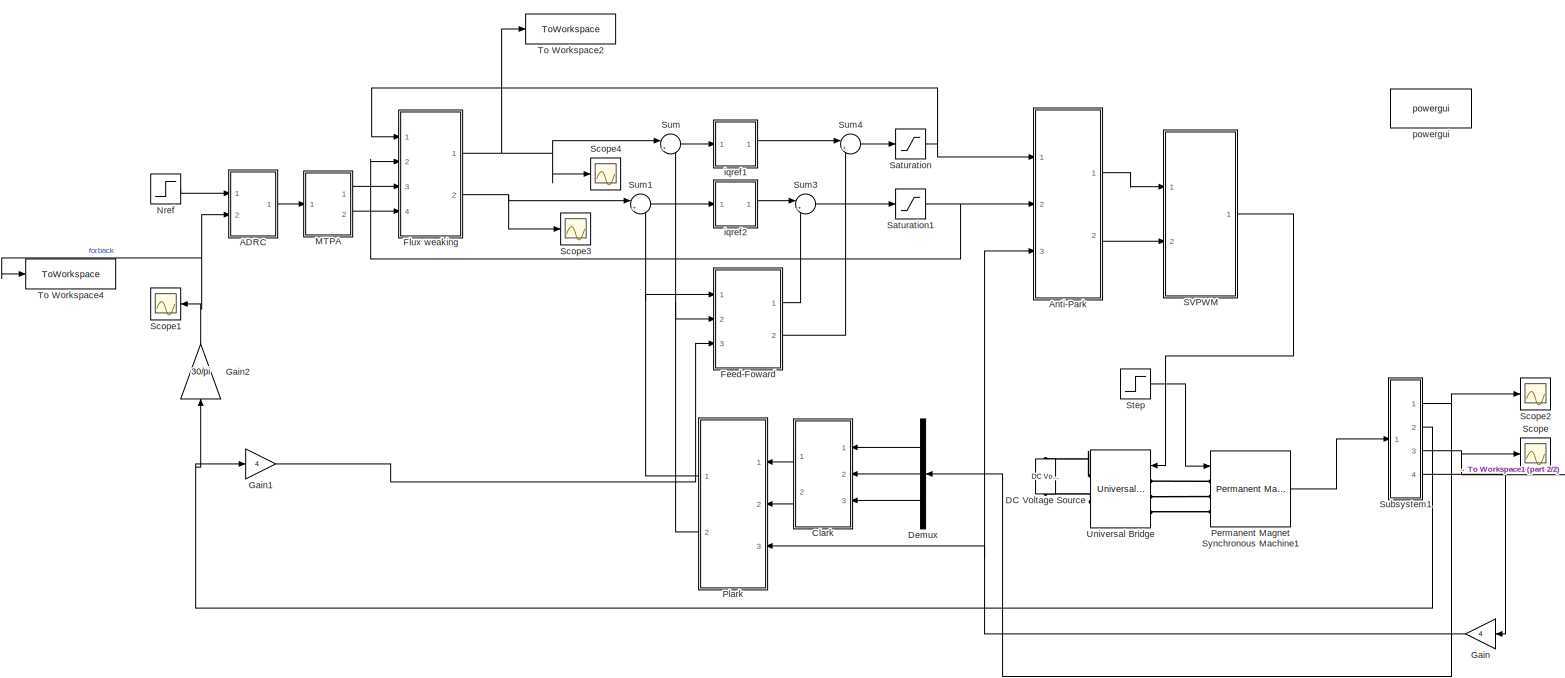
[diagram: root canvas - part 1/2, most of the canvas]
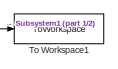
[diagram: root canvas - part 2/2, bottom right region]
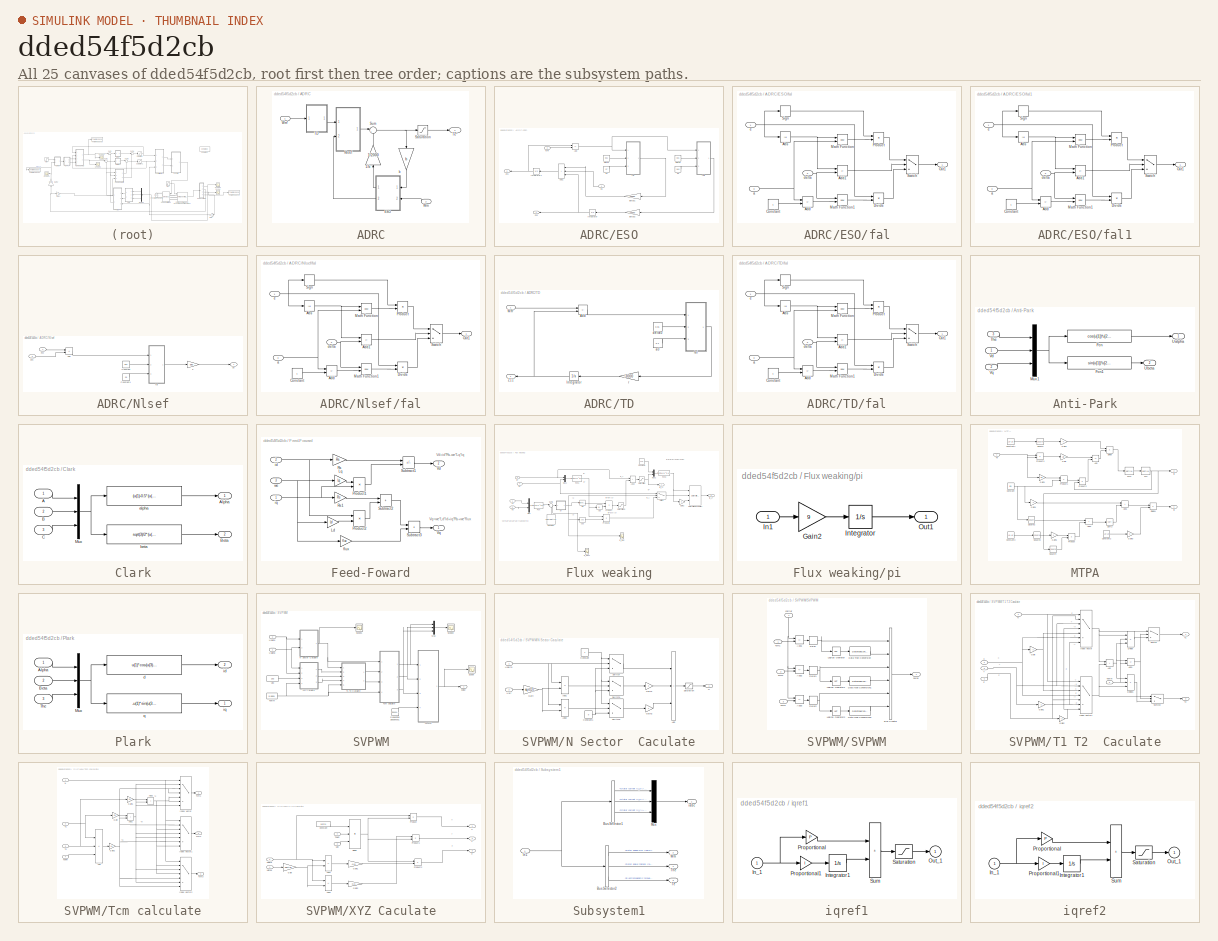
[diagram: thumbnail index - all 25 canvases of the model, root first then tree order]
MODEL slx_dded54f5d2cb
KIND model
CONFIG AbsTol = auto
CONFIG EnableMultiTasking = off
CONFIG FixedStep = auto
CONFIG InitFcn = Ld=0.2e-3;\nLq=0.47e-3;\nflux=0.062;\nRs=0.025;\nb=1600;\n
CONFIG MaxStep = auto
CONFIG MinStep = auto
CONFIG RelTol = auto
CONFIG SampleTimeConstraint = Unconstrained
CONFIG SolverName = ode3
CONFIG StartTime = 0.0
CONFIG StopTime = 0.6
BLOCK [SubSystem] ADRC
  Ports = [2, 1]
  RequestExecContextInheritance = off
BLOCK [Gain] ADRC/1//b
  Gain = 1/2000
  NameLocation = right
BLOCK [SubSystem] ADRC/ESO
  NameLocation = top
  Ports = [2, 2]
  RequestExecContextInheritance = off
BLOCK [Sum] ADRC/ESO/Add
  IconShape = rectangular
  Inputs = +-
  Ports = [2, 1]
BLOCK [Sum] ADRC/ESO/Add1
  IconShape = rectangular
  Inputs = +++
  NameLocation = top
  Ports = [3, 1]
BLOCK [Gain] ADRC/ESO/Beta01
  Gain = -15000
  NameLocation = top
BLOCK [Gain] ADRC/ESO/Beta02
  Gain = -10000
  NameLocation = top
BLOCK [Integrator] ADRC/ESO/Integrator
  NameLocation = top
  Ports = [1, 1]
BLOCK [Integrator] ADRC/ESO/Integrator1
  NameLocation = top
  Ports = [1, 1]
BLOCK [Inport] ADRC/ESO/Wm
  Port = 2
BLOCK [Outport] ADRC/ESO/Z21
  NameLocation = top
  Port = 2
BLOCK [Outport] ADRC/ESO/Z22
  NameLocation = top
BLOCK [Constant] ADRC/ESO/a1
  Value = 0.7
BLOCK [Constant] ADRC/ESO/a2
  Value = 0.83
BLOCK [Inport] ADRC/ESO/bu
  NameLocation = top
BLOCK [Constant] ADRC/ESO/delta1
  Value = 0.01
BLOCK [Constant] ADRC/ESO/delta2
  Value = 0.01
BLOCK [SubSystem] ADRC/ESO/fal
  Ports = [3, 1]
  RequestExecContextInheritance = off
BLOCK [Abs] ADRC/ESO/fal/Abs
  NameLocation = top
  SaturateOnIntegerOverflow = off
BLOCK [Sum] ADRC/ESO/fal/Add
  IconShape = rectangular
  Inputs = -+
  Ports = [2, 1]
BLOCK [Sum] ADRC/ESO/fal/Add1
  IconShape = rectangular
  Inputs = +-
  Ports = [2, 1]
BLOCK [Constant] ADRC/ESO/fal/Constant
BLOCK [Product] ADRC/ESO/fal/Divide
  Inputs = */
  Ports = [2, 1]
BLOCK [Math] ADRC/ESO/fal/Math Function
  Operator = pow
  Ports = [2, 1]
  SignedPower = on
BLOCK [Math] ADRC/ESO/fal/Math Function1
  Operator = pow
  Ports = [2, 1]
  SignedPower = on
BLOCK [Outport] ADRC/ESO/fal/Out1
BLOCK [Product] ADRC/ESO/fal/Product
  Ports = [2, 1]
  RndMeth = Zero
BLOCK [Signum] ADRC/ESO/fal/Sign
BLOCK [Switch] ADRC/ESO/fal/Switch
  InputSameDT = off
  SaturateOnIntegerOverflow = off
BLOCK [Inport] ADRC/ESO/fal/a
  Port = 3
BLOCK [Inport] ADRC/ESO/fal/delta
  Port = 2
BLOCK [Inport] ADRC/ESO/fal/e
BLOCK [SubSystem] ADRC/ESO/fal1
  Ports = [3, 1]
  RequestExecContextInheritance = off
BLOCK [Abs] ADRC/ESO/fal1/Abs
  NameLocation = top
  SaturateOnIntegerOverflow = off
BLOCK [Sum] ADRC/ESO/fal1/Add
  IconShape = rectangular
  Inputs = -+
  Ports = [2, 1]
BLOCK [Sum] ADRC/ESO/fal1/Add1
  IconShape = rectangular
  Inputs = +-
  Ports = [2, 1]
BLOCK [Constant] ADRC/ESO/fal1/Constant
BLOCK [Product] ADRC/ESO/fal1/Divide
  Inputs = */
  Ports = [2, 1]
BLOCK [Math] ADRC/ESO/fal1/Math Function
  Operator = pow
  Ports = [2, 1]
  SignedPower = on
BLOCK [Math] ADRC/ESO/fal1/Math Function1
  Operator = pow
  Ports = [2, 1]
  SignedPower = on
BLOCK [Outport] ADRC/ESO/fal1/Out1
BLOCK [Product] ADRC/ESO/fal1/Product
  Ports = [2, 1]
  RndMeth = Zero
BLOCK [Signum] ADRC/ESO/fal1/Sign
BLOCK [Switch] ADRC/ESO/fal1/Switch
  InputSameDT = off
  SaturateOnIntegerOverflow = off
BLOCK [Inport] ADRC/ESO/fal1/a
  Port = 3
BLOCK [Inport] ADRC/ESO/fal1/delta
  Port = 2
BLOCK [Inport] ADRC/ESO/fal1/e
BLOCK [SubSystem] ADRC/Nlsef
  Ports = [2, 1]
  RequestExecContextInheritance = off
BLOCK [Sum] ADRC/Nlsef/Add
  IconShape = rectangular
  Inputs = +-
  Ports = [2, 1]
BLOCK [Constant] ADRC/Nlsef/Constant
  Value = 0.01
BLOCK [Constant] ADRC/Nlsef/Constant1
  Value = 0.9
BLOCK [Inport] ADRC/Nlsef/Z11
BLOCK [Inport] ADRC/Nlsef/Z21
  Port = 2
BLOCK [SubSystem] ADRC/Nlsef/fal
  Ports = [3, 1]
  RequestExecContextInheritance = off
BLOCK [Abs] ADRC/Nlsef/fal/Abs
  NameLocation = top
  SaturateOnIntegerOverflow = off
BLOCK [Sum] ADRC/Nlsef/fal/Add
  IconShape = rectangular
  Inputs = -+
  Ports = [2, 1]
BLOCK [Sum] ADRC/Nlsef/fal/Add1
  IconShape = rectangular
  Inputs = +-
  Ports = [2, 1]
BLOCK [Constant] ADRC/Nlsef/fal/Constant
BLOCK [Product] ADRC/Nlsef/fal/Divide
  Inputs = */
  Ports = [2, 1]
BLOCK [Math] ADRC/Nlsef/fal/Math Function
  Operator = pow
  Ports = [2, 1]
  SignedPower = on
BLOCK [Math] ADRC/Nlsef/fal/Math Function1
  Operator = pow
  Ports = [2, 1]
  SignedPower = on
BLOCK [Outport] ADRC/Nlsef/fal/Out1
BLOCK [Product] ADRC/Nlsef/fal/Product
  Ports = [2, 1]
  RndMeth = Zero
BLOCK [Signum] ADRC/Nlsef/fal/Sign
BLOCK [Switch] ADRC/Nlsef/fal/Switch
  InputSameDT = off
  SaturateOnIntegerOverflow = off
BLOCK [Inport] ADRC/Nlsef/fal/a
  Port = 3
BLOCK [Inport] ADRC/Nlsef/fal/delta
  Port = 2
BLOCK [Inport] ADRC/Nlsef/fal/e
BLOCK [Gain] ADRC/Nlsef/k
  Gain = 980
BLOCK [Outport] ADRC/Nlsef/u0
BLOCK [Saturate] ADRC/Saturation
  LowerLimit = -72
  UpperLimit = 72
BLOCK [Sum] ADRC/Sum
  Inputs = |+-
  Ports = [2, 1]
BLOCK [SubSystem] ADRC/TD
  Ports = [1, 1]
  RequestExecContextInheritance = off
BLOCK [Sum] ADRC/TD/Add
  IconShape = rectangular
  Inputs = -+
  Ports = [2, 1]
BLOCK [Integrator] ADRC/TD/Integrator
  NameLocation = top
  Ports = [1, 1]
BLOCK [Inport] ADRC/TD/Wm*
BLOCK [Outport] ADRC/TD/Z11
  NameLocation = top
BLOCK [Constant] ADRC/TD/a0
  Value = 0.4
BLOCK [Constant] ADRC/TD/delta0
  Value = 0.01
BLOCK [SubSystem] ADRC/TD/fal
  Ports = [3, 1]
  RequestExecContextInheritance = off
BLOCK [Abs] ADRC/TD/fal/Abs
  NameLocation = top
  SaturateOnIntegerOverflow = off
BLOCK [Sum] ADRC/TD/fal/Add
  IconShape = rectangular
  Inputs = -+
  Ports = [2, 1]
BLOCK [Sum] ADRC/TD/fal/Add1
  IconShape = rectangular
  Inputs = +-
  Ports = [2, 1]
BLOCK [Constant] ADRC/TD/fal/Constant
BLOCK [Product] ADRC/TD/fal/Divide
  Inputs = */
  Ports = [2, 1]
BLOCK [Math] ADRC/TD/fal/Math Function
  Operator = pow
  Ports = [2, 1]
  SignedPower = on
BLOCK [Math] ADRC/TD/fal/Math Function1
  Operator = pow
  Ports = [2, 1]
  SignedPower = on
BLOCK [Outport] ADRC/TD/fal/Out1
BLOCK [Product] ADRC/TD/fal/Product
  Ports = [2, 1]
  RndMeth = Zero
BLOCK [Signum] ADRC/TD/fal/Sign
BLOCK [Switch] ADRC/TD/fal/Switch
  InputSameDT = off
  SaturateOnIntegerOverflow = off
BLOCK [Inport] ADRC/TD/fal/a
  Port = 3
BLOCK [Inport] ADRC/TD/fal/delta
  Port = 2
BLOCK [Inport] ADRC/TD/fal/e
BLOCK [Gain] ADRC/TD/r
  Gain = -3000
  NameLocation = top
BLOCK [Outport] ADRC/Te*
BLOCK [Inport] ADRC/Wm
  NameLocation = top
  Port = 2
BLOCK [Inport] ADRC/Wm*
BLOCK [Gain] ADRC/b
  Gain = b
  NameLocation = left
BLOCK [SubSystem] Anti-Park
  Ports = [3, 2]
  RequestExecContextInheritance = off
BLOCK [Fcn] Anti-Park/Fcn
  Expr = cos(u[1])*u[2]-sin(u[1])*u[3]
BLOCK [Fcn] Anti-Park/Fcn1
  Expr = sin(u[1])*u[2]+cos(u[1])*u[3]
BLOCK [Mux] Anti-Park/Mux1
  DisplayOption = bar
  Inputs = 3
  Ports = [3, 1]
BLOCK [Inport] Anti-Park/The
  Port = 3
BLOCK [Outport] Anti-Park/Ualpha
  VectorParamsAs1DForOutWhenUnconnected = off
BLOCK [Outport] Anti-Park/Ubeta
  Port = 2
  VectorParamsAs1DForOutWhenUnconnected = off
BLOCK [Inport] Anti-Park/Vd
BLOCK [Inport] Anti-Park/Vq
  Port = 2
BLOCK [SubSystem] Clark
  Ports = [3, 2]
  RequestExecContextInheritance = off
BLOCK [Inport] Clark/A
BLOCK [Outport] Clark/Alpha
  VectorParamsAs1DForOutWhenUnconnected = off
BLOCK [Inport] Clark/B
  Port = 2
BLOCK [Outport] Clark/Beta
  Port = 2
  VectorParamsAs1DForOutWhenUnconnected = off
BLOCK [Inport] Clark/C
  Port = 3
BLOCK [Mux] Clark/Mux
  DisplayOption = bar
  Inputs = 3
  Ports = [3, 1]
BLOCK [Fcn] Clark/alpha
  Expr = (u(1)-0.5*(u(2)+u(3)))*2/3
BLOCK [Fcn] Clark/beta
  Expr = sqrt(3)/2*(u(2)-u(3))*2/3
BLOCK [Reference] DC Voltage Source  REF=spsDCVoltageSourceLib/DC Voltage Source
  NameLocation = right
  Ports = [0, 0, 0, 0, 0, 1, 1]
  SourceBlock = spsDCVoltageSourceLib/DC Voltage Source
  SourceProductBaseCode = PS
  SourceType = DC Voltage Source
BLOCK [Demux] Demux
  Outputs = 3
  Ports = [1, 3]
BLOCK [SubSystem] Feed-Foward
  Ports = [3, 2]
  RequestExecContextInheritance = off
BLOCK [Gain] Feed-Foward/Ld
  Gain = Ld
BLOCK [Gain] Feed-Foward/Lq
  Gain = Lq
  NameLocation = top
BLOCK [Product] Feed-Foward/Product1
  NameLocation = top
  Ports = [2, 1]
  RndMeth = Zero
BLOCK [Product] Feed-Foward/Product2
  Ports = [2, 1]
  RndMeth = Zero
BLOCK [Gain] Feed-Foward/Rs
  Gain = Rs
  NameLocation = top
BLOCK [Gain] Feed-Foward/Rs1
  Gain = Rs
BLOCK [Sum] Feed-Foward/Subtract1
  IconShape = rectangular
  Inputs = +-
  NameLocation = top
  Ports = [2, 1]
BLOCK [Sum] Feed-Foward/Subtract2
  IconShape = rectangular
  Ports = [2, 1]
BLOCK [Sum] Feed-Foward/Subtract3
  IconShape = rectangular
  Ports = [2, 1]
BLOCK [Outport] Feed-Foward/Vd
  Port = 2
  VectorParamsAs1DForOutWhenUnconnected = off
BLOCK [Outport] Feed-Foward/Vq
  VectorParamsAs1DForOutWhenUnconnected = off
BLOCK [Gain] Feed-Foward/flux
  Gain = flux
BLOCK [Inport] Feed-Foward/id
  Port = 2
BLOCK [Inport] Feed-Foward/iq
BLOCK [Inport] Feed-Foward/we
  Port = 3
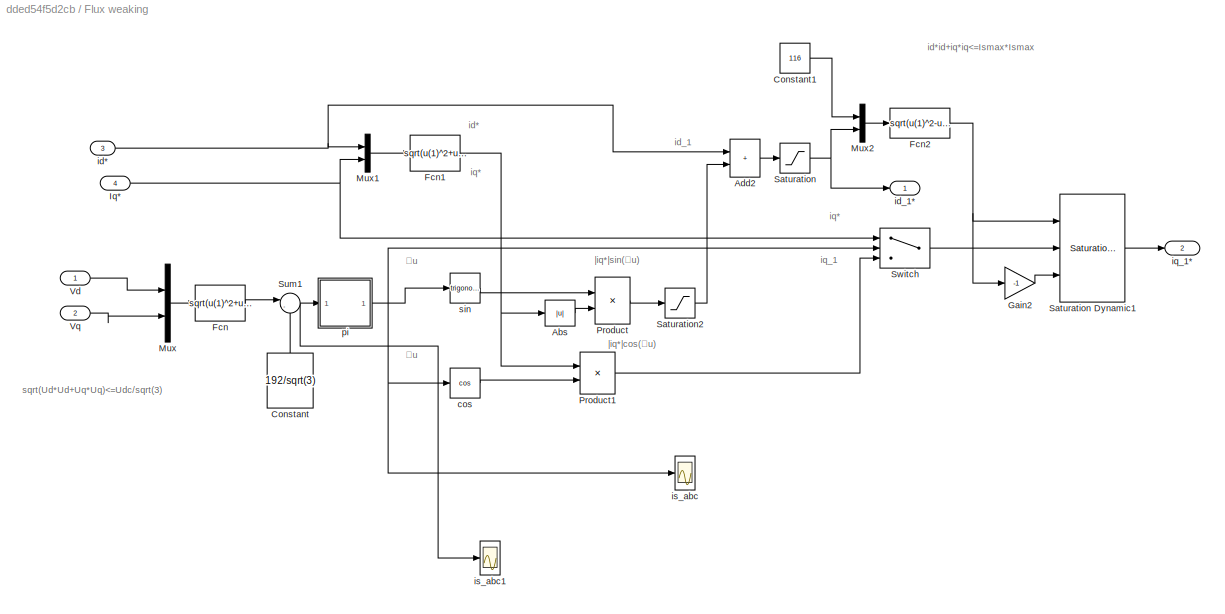
BLOCK [SubSystem] Flux weaking
  Ports = [4, 2]
  RequestExecContextInheritance = off
BLOCK [Abs] Flux weaking/Abs
  SaturateOnIntegerOverflow = off
BLOCK [Sum] Flux weaking/Add2
  IconShape = rectangular
  NameLocation = top
  OutDataTypeStr = Inherit: Same as first input
  Ports = [2, 1]
BLOCK [Constant] Flux weaking/Constant
  NameLocation = right
  SampleTime = -1
  Value = 192/sqrt(3)
BLOCK [Constant] Flux weaking/Constant1
  NameLocation = top
  SampleTime = -1
  Value = 116
BLOCK [Fcn] Flux weaking/Fcn
  Expr = sqrt(u(1)^2+u(2)^2)
BLOCK [Fcn] Flux weaking/Fcn1
  Expr = sqrt(u(1)^2+u(2)^2)
BLOCK [Fcn] Flux weaking/Fcn2
  Expr = sqrt(u(1)^2-u(2)^2)
  NameLocation = top
BLOCK [Gain] Flux weaking/Gain2
  Gain = -1
  NameLocation = top
BLOCK [Inport] Flux weaking/Iq*
  Port = 4
BLOCK [Mux] Flux weaking/Mux
  DisplayOption = bar
  Inputs = 2
  Ports = [2, 1]
BLOCK [Mux] Flux weaking/Mux1
  DisplayOption = bar
  Inputs = 2
  Ports = [2, 1]
BLOCK [Mux] Flux weaking/Mux2
  DisplayOption = bar
  Inputs = 2
  Ports = [2, 1]
BLOCK [Product] Flux weaking/Product
  Ports = [2, 1]
  RndMeth = Zero
BLOCK [Product] Flux weaking/Product1
  Ports = [2, 1]
  RndMeth = Zero
BLOCK [Saturate] Flux weaking/Saturation
  LowerLimit = -100
  UpperLimit = 100
BLOCK [Reference] Flux weaking/Saturation Dynamic1  REF=simulink/Discontinuities/Saturation
Dynamic
  Ports = [3, 1]
  SourceBlock = simulink/Discontinuities/Saturation\nDynamic
  SourceProductBaseCode = SL
  SourceType = Saturation Dynamic
BLOCK [Saturate] Flux weaking/Saturation2
  LowerLimit = -flux/Ld
  UpperLimit = 0
BLOCK [Sum] Flux weaking/Sum1
  Inputs = |-+
  Ports = [2, 1]
BLOCK [Switch] Flux weaking/Switch
  InputSameDT = off
  SaturateOnIntegerOverflow = off
BLOCK [Inport] Flux weaking/Vd
  NameLocation = top
BLOCK [Inport] Flux weaking/Vq
  Port = 2
BLOCK [Trigonometry] Flux weaking/cos
  Operator = cos
  Ports = [1, 1]
BLOCK [Inport] Flux weaking/id*
  Port = 3
BLOCK [Outport] Flux weaking/id_1*
  NameLocation = top
  VectorParamsAs1DForOutWhenUnconnected = off
BLOCK [Outport] Flux weaking/iq_1*
  Port = 2
  VectorParamsAs1DForOutWhenUnconnected = off
BLOCK [Scope] Flux weaking/is_abc
  Floating = off
  NumInputPorts = 1
  Ports = [1]
  ScopeSpecificationString = Simulink.scopes.TimeScopeBlockCfg('CurrentConfiguration', extmgr.ConfigurationSet(extmgr.Configuration('Core','General UI',true),extmgr.Configuration('Core','Source UI',true),extmgr.Configuration('Sources','WiredSimulink',true,'DataLoggingVariableName','ScopeData1'),extmgr.Configuration('Visuals','Time Domain',true,'SerializedDisplays',{struct('MinYLimReal','-1.00000','MaxYLimReal','1.00000','YLab...<+1386ch>
BLOCK [Scope] Flux weaking/is_abc1
  Floating = off
  NumInputPorts = 1
  Ports = [1]
  ScopeSpecificationString = Simulink.scopes.TimeScopeBlockCfg('CurrentConfiguration', extmgr.ConfigurationSet(extmgr.Configuration('Core','General UI',true),extmgr.Configuration('Core','Source UI',true),extmgr.Configuration('Sources','WiredSimulink',true,'DataLoggingVariableName','ScopeData2'),extmgr.Configuration('Visuals','Time Domain',true,'SerializedDisplays',{struct('MinYLimReal','0.29752','MaxYLimReal','0.60844','YLabe...<+1386ch>
BLOCK [SubSystem] Flux weaking/pi
  Ports = [1, 1]
  RequestExecContextInheritance = off
BLOCK [Gain] Flux weaking/pi/Gain2
  Gain = 9
  NameLocation = top
BLOCK [Inport] Flux weaking/pi/In1
BLOCK [Integrator] Flux weaking/pi/Integrator
  LimitOutput = on
  LowerSaturationLimit = -1.57
  Ports = [1, 1]
  UpperSaturationLimit = 0
BLOCK [Outport] Flux weaking/pi/Out1
  VectorParamsAs1DForOutWhenUnconnected = off
BLOCK [Trigonometry] Flux weaking/sin
  Ports = [1, 1]
BLOCK [Gain] Gain
  Gain = 4
  NameLocation = top
BLOCK [Gain] Gain1
  Gain = 4
BLOCK [Gain] Gain2
  Gain = 30/pi
  NameLocation = right
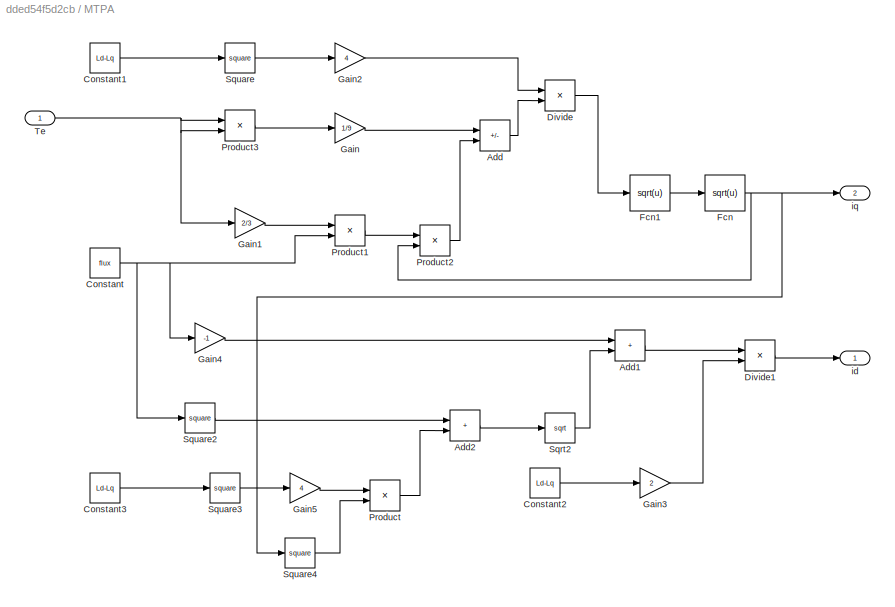
BLOCK [SubSystem] MTPA
  Ports = [1, 2]
  RequestExecContextInheritance = off
BLOCK [Sum] MTPA/Add
  IconShape = rectangular
  Inputs = +-
  Ports = [2, 1]
BLOCK [Sum] MTPA/Add1
  IconShape = rectangular
  Ports = [2, 1]
BLOCK [Sum] MTPA/Add2
  IconShape = rectangular
  Ports = [2, 1]
BLOCK [Constant] MTPA/Constant
  Value = flux
BLOCK [Constant] MTPA/Constant1
  Value = Ld-Lq
BLOCK [Constant] MTPA/Constant2
  Value = Ld-Lq
BLOCK [Constant] MTPA/Constant3
  Value = Ld-Lq
BLOCK [Product] MTPA/Divide
  Inputs = /*
  Ports = [2, 1]
BLOCK [Product] MTPA/Divide1
  Inputs = */
  Ports = [2, 1]
BLOCK [Fcn] MTPA/Fcn
  Expr = sqrt(u)
BLOCK [Fcn] MTPA/Fcn1
  Expr = sqrt(u)
BLOCK [Gain] MTPA/Gain
  Gain = 1/9
BLOCK [Gain] MTPA/Gain1
  Gain = 2/3
BLOCK [Gain] MTPA/Gain2
  Gain = 4
BLOCK [Gain] MTPA/Gain3
  Gain = 2
BLOCK [Gain] MTPA/Gain4
  Gain = -1
BLOCK [Gain] MTPA/Gain5
  Gain = 4
BLOCK [Product] MTPA/Product
  Ports = [2, 1]
BLOCK [Product] MTPA/Product1
  Ports = [2, 1]
BLOCK [Product] MTPA/Product2
  Ports = [2, 1]
BLOCK [Product] MTPA/Product3
  Ports = [2, 1]
BLOCK [Sqrt] MTPA/Sqrt2
BLOCK [Math] MTPA/Square
  Operator = square
  Ports = [1, 1]
BLOCK [Math] MTPA/Square2
  Operator = square
  Ports = [1, 1]
BLOCK [Math] MTPA/Square3
  Operator = square
  Ports = [1, 1]
BLOCK [Math] MTPA/Square4
  Operator = square
  Ports = [1, 1]
BLOCK [Inport] MTPA/Te
BLOCK [Outport] MTPA/id
BLOCK [Outport] MTPA/iq
  Port = 2
BLOCK [Step] Nref
  After = 5500
  Before = 3500
  SampleTime = 0
  Time = 0.2
BLOCK [Reference] Permanent Magnet Synchronous Machine1  REF=spsPermanentMagnetSynchronousMachineLib/Permanent Magnet
Synchronous Machine
  Ports = [1, 1, 0, 0, 0, 3]
  SourceBlock = spsPermanentMagnetSynchronousMachineLib/Permanent Magnet\nSynchronous Machine
  SourceProductBaseCode = PS
  SourceType = Permanent Magnet Synchronous Machine
BLOCK [SubSystem] Plark
  Ports = [3, 2]
  RequestExecContextInheritance = off
BLOCK [Inport] Plark/Alpha
BLOCK [Inport] Plark/Beta
  Port = 2
BLOCK [Mux] Plark/Mux
  DisplayOption = bar
  Inputs = 3
  Ports = [3, 1]
BLOCK [Inport] Plark/The
  Port = 3
BLOCK [Fcn] Plark/d
  Expr = u(1)*cos(u(3))+u(2)*sin(u(3))
BLOCK [Outport] Plark/id
  Port = 2
  VectorParamsAs1DForOutWhenUnconnected = off
BLOCK [Outport] Plark/iq
  VectorParamsAs1DForOutWhenUnconnected = off
BLOCK [Fcn] Plark/q
  Expr = -u(1)*sin(u(3))+u(2)*cos(u(3))
BLOCK [SubSystem] SVPWM
  Ports = [2, 1]
  RequestExecContextInheritance = off
BLOCK [Mux] SVPWM/Mux
  DisplayOption = bar
  Inputs = 3
  Ports = [3, 1]
BLOCK [SubSystem] SVPWM/N Sector  Caculate
  NameLocation = top
  Ports = [2, 1]
  RequestExecContextInheritance = off
  TreatAsAtomicUnit = on
BLOCK [Sum] SVPWM/N Sector  Caculate/Add
  IconShape = rectangular
  Inputs = +++
  Ports = [3, 1]
BLOCK [Sum] SVPWM/N Sector  Caculate/Add1
  IconShape = rectangular
  Inputs = -+
  Ports = [2, 1]
BLOCK [Sum] SVPWM/N Sector  Caculate/Add2
  IconShape = rectangular
  Inputs = --
  Ports = [2, 1]
BLOCK [Constant] SVPWM/N Sector  Caculate/Constant
  NameLocation = top
BLOCK [Constant] SVPWM/N Sector  Caculate/Constant1
  Value = 0
BLOCK [Gain] SVPWM/N Sector  Caculate/Gain
  Gain = sqrt(3)
BLOCK [Gain] SVPWM/N Sector  Caculate/Gain1
  Gain = 2
BLOCK [Gain] SVPWM/N Sector  Caculate/Gain2
  Gain = 4
BLOCK [Outport] SVPWM/N Sector  Caculate/N
  VectorParamsAs1DForOutWhenUnconnected = off
BLOCK [Saturate] SVPWM/N Sector  Caculate/Saturation
  LowerLimit = 1
  UpperLimit = 6
BLOCK [Switch] SVPWM/N Sector  Caculate/Switch
  InputSameDT = off
  SaturateOnIntegerOverflow = off
BLOCK [Switch] SVPWM/N Sector  Caculate/Switch1
  InputSameDT = off
  SaturateOnIntegerOverflow = off
BLOCK [Switch] SVPWM/N Sector  Caculate/Switch2
  InputSameDT = off
  SaturateOnIntegerOverflow = off
BLOCK [Inport] SVPWM/N Sector  Caculate/Ualf
  Port = 2
BLOCK [Inport] SVPWM/N Sector  Caculate/Ubelta
BLOCK [Reference] SVPWM/Repeating Sequence1  REF=simulink/Sources/Repeating
Sequence
  Ports = [0, 1]
  SourceBlock = simulink/Sources/Repeating\nSequence
  SourceProductBaseCode = SL
  SourceType = Repeating table
BLOCK [SubSystem] SVPWM/SVPWM
  NameLocation = top
  Ports = [4, 1]
  RequestExecContextInheritance = off
  TreatAsAtomicUnit = on
BLOCK [Sum] SVPWM/SVPWM/Add1
  IconShape = rectangular
  Inputs = +-
  Ports = [2, 1]
BLOCK [Sum] SVPWM/SVPWM/Add2
  IconShape = rectangular
  Inputs = +-
  Ports = [2, 1]
BLOCK [Sum] SVPWM/SVPWM/Add3
  IconShape = rectangular
  Inputs = +-
  Ports = [2, 1]
BLOCK [BusCreator] SVPWM/SVPWM/Bus Creator
  DisplayOption = bar
  InheritFromInputs = on
  Inputs = 6
  Ports = [6, 1]
BLOCK [DataTypeConversion] SVPWM/SVPWM/Data Type Conversion
  OutDataTypeStr = double
  RndMeth = Floor
  SaturateOnIntegerOverflow = off
BLOCK [DataTypeConversion] SVPWM/SVPWM/Data Type Conversion1
  OutDataTypeStr = double
  RndMeth = Floor
  SaturateOnIntegerOverflow = off
BLOCK [DataTypeConversion] SVPWM/SVPWM/Data Type Conversion2
  OutDataTypeStr = double
  RndMeth = Floor
  SaturateOnIntegerOverflow = off
BLOCK [Logic] SVPWM/SVPWM/Logical Operator
  AllPortsSameDT = off
  Operator = NOT
  OutDataTypeStr = boolean
  Ports = [1, 1]
BLOCK [Logic] SVPWM/SVPWM/Logical Operator1
  AllPortsSameDT = off
  Operator = NOT
  OutDataTypeStr = boolean
  Ports = [1, 1]
BLOCK [Logic] SVPWM/SVPWM/Logical Operator2
  AllPortsSameDT = off
  Operator = NOT
  OutDataTypeStr = boolean
  Ports = [1, 1]
BLOCK [Relay] SVPWM/SVPWM/Relay
BLOCK [Relay] SVPWM/SVPWM/Relay1
BLOCK [Relay] SVPWM/SVPWM/Relay2
BLOCK [Inport] SVPWM/SVPWM/Tcm1
BLOCK [Inport] SVPWM/SVPWM/Tcm2
  Port = 2
BLOCK [Inport] SVPWM/SVPWM/Tcm3
  Port = 3
BLOCK [Inport] SVPWM/SVPWM/carrier
  NameLocation = right
  Port = 4
BLOCK [Outport] SVPWM/SVPWM/pulse
  VectorParamsAs1DForOutWhenUnconnected = off
BLOCK [Scope] SVPWM/Scope
  Floating = off
  NumInputPorts = 1
  Ports = [1]
  ScopeSpecificationString = Simulink.scopes.TimeScopeBlockCfg('CurrentConfiguration', extmgr.ConfigurationSet(extmgr.Configuration('Core','General UI',true),extmgr.Configuration('Core','Source UI',true),extmgr.Configuration('Sources','WiredSimulink',true,'DataLoggingVariableName','ScopeData1'),extmgr.Configuration('Visuals','Time Domain',true,'SerializedDisplays',{struct('MinYLimReal','-0.125','MaxYLimReal','1.125','YLabelRe...<+1515ch>
BLOCK [Scope] SVPWM/Scope1
  Floating = off
  NumInputPorts = 1
  Ports = [1]
  ScopeSpecificationString = Simulink.scopes.TimeScopeBlockCfg('CurrentConfiguration', extmgr.ConfigurationSet(extmgr.Configuration('Core','General UI',true),extmgr.Configuration('Core','Source UI',true),extmgr.Configuration('Sources','WiredSimulink',true,'DataLoggingVariableName','ScopeData2'),extmgr.Configuration('Visuals','Time Domain',true,'SerializedDisplays',{struct('MinYLimReal','0.375','MaxYLimReal','6.625','YLabelRea...<+1388ch>
BLOCK [Scope] SVPWM/Scope2
  Floating = off
  NumInputPorts = 1
  Ports = [1]
  ScopeSpecificationString = Simulink.scopes.TimeScopeBlockCfg('CurrentConfiguration', extmgr.ConfigurationSet(extmgr.Configuration('Core','General UI',true),extmgr.Configuration('Core','Source UI',true),extmgr.Configuration('Sources','WiredSimulink',true,'DataLoggingVariableName','ScopeData3'),extmgr.Configuration('Visuals','Time Domain',true,'SerializedDisplays',{struct('MinYLimReal','-0.000006','MaxYLimReal','0.000056','YL...<+1493ch>
BLOCK [SubSystem] SVPWM/T1 T2  Caculate
  Ports = [5, 2]
  RequestExecContextInheritance = off
  TreatAsAtomicUnit = on
BLOCK [Sum] SVPWM/T1 T2  Caculate/Add
  IconShape = rectangular
  Ports = [2, 1]
BLOCK [Sum] SVPWM/T1 T2  Caculate/Add1
  IconShape = rectangular
  Inputs = -+
  Ports = [2, 1]
BLOCK [Product] SVPWM/T1 T2  Caculate/Divide
  Inputs = **/
  Ports = [3, 1]
BLOCK [Product] SVPWM/T1 T2  Caculate/Divide1
  Inputs = /**
  Ports = [3, 1]
BLOCK [Gain] SVPWM/T1 T2  Caculate/Gain
  Gain = -1
BLOCK [Gain] SVPWM/T1 T2  Caculate/Gain1
  Gain = -1
BLOCK [Gain] SVPWM/T1 T2  Caculate/Gain2
  Gain = -1
BLOCK [MultiPortSwitch] SVPWM/T1 T2  Caculate/Index Vector
  InputSameDT = off
  Inputs = 6
  Ports = [7, 1]
  SaturateOnIntegerOverflow = off
BLOCK [MultiPortSwitch] SVPWM/T1 T2  Caculate/Index Vector1
  InputSameDT = off
  Inputs = 6
  Ports = [7, 1]
  SaturateOnIntegerOverflow = off
BLOCK [Inport] SVPWM/T1 T2  Caculate/N
BLOCK [Switch] SVPWM/T1 T2  Caculate/Switch
  Criteria = u2 > Threshold
  InputSameDT = off
  SaturateOnIntegerOverflow = off
BLOCK [Switch] SVPWM/T1 T2  Caculate/Switch2
  Criteria = u2 > Threshold
  InputSameDT = off
  SaturateOnIntegerOverflow = off
BLOCK [Outport] SVPWM/T1 T2  Caculate/T1
  VectorParamsAs1DForOutWhenUnconnected = off
BLOCK [Outport] SVPWM/T1 T2  Caculate/T2
  Port = 2
  VectorParamsAs1DForOutWhenUnconnected = off
BLOCK [Inport] SVPWM/T1 T2  Caculate/Tpwm
  NameLocation = top
  Port = 5
BLOCK [Inport] SVPWM/T1 T2  Caculate/X
  NameLocation = top
  Port = 2
BLOCK [Inport] SVPWM/T1 T2  Caculate/Y
  Port = 3
BLOCK [Inport] SVPWM/T1 T2  Caculate/Z
  Port = 4
BLOCK [SubSystem] SVPWM/Tcm calculate
  NameLocation = top
  Ports = [4, 3]
  RequestExecContextInheritance = off
  TreatAsAtomicUnit = on
BLOCK [Sum] SVPWM/Tcm calculate/Add
  IconShape = rectangular
  Inputs = --+
  Ports = [3, 1]
BLOCK [Sum] SVPWM/Tcm calculate/Add1
  IconShape = rectangular
  Ports = [2, 1]
BLOCK [Sum] SVPWM/Tcm calculate/Add2
  IconShape = rectangular
  NameLocation = top
  Ports = [2, 1]
BLOCK [Gain] SVPWM/Tcm calculate/Gain
  Gain = 0.5
BLOCK [Gain] SVPWM/Tcm calculate/Gain1
  Gain = 0.5
BLOCK [Gain] SVPWM/Tcm calculate/Gain2
  Gain = 1/4
BLOCK [MultiPortSwitch] SVPWM/Tcm calculate/Index Vector
  InputSameDT = off
  Inputs = 6
  Ports = [7, 1]
  SaturateOnIntegerOverflow = off
BLOCK [MultiPortSwitch] SVPWM/Tcm calculate/Index Vector1
  InputSameDT = off
  Inputs = 6
  Ports = [7, 1]
  SaturateOnIntegerOverflow = off
BLOCK [MultiPortSwitch] SVPWM/Tcm calculate/Index Vector2
  InputSameDT = off
  Inputs = 6
  Ports = [7, 1]
  SaturateOnIntegerOverflow = off
BLOCK [Inport] SVPWM/Tcm calculate/N
BLOCK [Inport] SVPWM/Tcm calculate/T1
  Port = 2
BLOCK [Inport] SVPWM/Tcm calculate/T2
  Port = 3
BLOCK [Outport] SVPWM/Tcm calculate/Tcm1
  VectorParamsAs1DForOutWhenUnconnected = off
BLOCK [Outport] SVPWM/Tcm calculate/Tcm2
  Port = 2
  VectorParamsAs1DForOutWhenUnconnected = off
BLOCK [Outport] SVPWM/Tcm calculate/Tcm3
  Port = 3
  VectorParamsAs1DForOutWhenUnconnected = off
BLOCK [Inport] SVPWM/Tcm calculate/Tpwm
  Port = 4
BLOCK [Constant] SVPWM/Tpwm
  Value = 0.0001
BLOCK [Inport] SVPWM/Ualpha
BLOCK [Inport] SVPWM/Ubelta
  Port = 2
BLOCK [Constant] SVPWM/Vdc
  Value = 192
BLOCK [SubSystem] SVPWM/XYZ Caculate
  Ports = [4, 3]
  RequestExecContextInheritance = off
  TreatAsAtomicUnit = on
BLOCK [Sum] SVPWM/XYZ Caculate/Add1
  IconShape = rectangular
  Inputs = -+
  NameLocation = top
  Ports = [2, 1]
BLOCK [Sum] SVPWM/XYZ Caculate/Add2
  IconShape = rectangular
  Inputs = --
  Ports = [2, 1]
BLOCK [Constant] SVPWM/XYZ Caculate/Constant
  Value = sqrt(3)
BLOCK [Product] SVPWM/XYZ Caculate/Divide
  Inputs = **/
  Ports = [3, 1]
BLOCK [Gain] SVPWM/XYZ Caculate/Gain
  Gain = sqrt(3)
BLOCK [Gain] SVPWM/XYZ Caculate/Gain1
  Gain = -0.5
BLOCK [Gain] SVPWM/XYZ Caculate/Gain2
  Gain = -0.5
BLOCK [Product] SVPWM/XYZ Caculate/Product
  Ports = [2, 1]
BLOCK [Product] SVPWM/XYZ Caculate/Product1
  Ports = [2, 1]
BLOCK [Product] SVPWM/XYZ Caculate/Product2
  Ports = [2, 1]
BLOCK [Inport] SVPWM/XYZ Caculate/Tpwm
  Port = 4
BLOCK [Inport] SVPWM/XYZ Caculate/Ualfpa
BLOCK [Inport] SVPWM/XYZ Caculate/Ubelta
  NameLocation = top
  Port = 2
BLOCK [Inport] SVPWM/XYZ Caculate/Udc
  Port = 3
BLOCK [Outport] SVPWM/XYZ Caculate/X
  VectorParamsAs1DForOutWhenUnconnected = off
BLOCK [Outport] SVPWM/XYZ Caculate/Y
  Port = 2
  VectorParamsAs1DForOutWhenUnconnected = off
BLOCK [Outport] SVPWM/XYZ Caculate/Z
  Port = 3
  VectorParamsAs1DForOutWhenUnconnected = off
BLOCK [Outport] SVPWM/pulse
  VectorParamsAs1DForOutWhenUnconnected = off
BLOCK [Saturate] Saturation
  LowerLimit = -192/1.732
  UpperLimit = 192/1.732
BLOCK [Saturate] Saturation1
  LowerLimit = -192/1.732
  UpperLimit = 192/1.732
BLOCK [Scope] Scope
  Floating = off
  NumInputPorts = 1
  Ports = [1]
  ScopeSpecificationString = Simulink.scopes.TimeScopeBlockCfg('CurrentConfiguration', extmgr.ConfigurationSet(extmgr.Configuration('Core','General UI',true),extmgr.Configuration('Core','Source UI',true),extmgr.Configuration('Sources','WiredSimulink',true,'DataLoggingVariableName','ScopeData2'),extmgr.Configuration('Visuals','Time Domain',true,'SerializedDisplays',{struct('MinYLimReal','-26.14776','MaxYLimReal','64.00569','YL...<+1600ch>
BLOCK [Scope] Scope1
  Floating = off
  NumInputPorts = 1
  Ports = [1]
  ScopeSpecificationString = Simulink.scopes.TimeScopeBlockCfg('CurrentConfiguration', extmgr.ConfigurationSet(extmgr.Configuration('Core','General UI',true),extmgr.Configuration('Core','Source UI',true),extmgr.Configuration('Sources','WiredSimulink',true,'DataLoggingVariableName','ScopeData3'),extmgr.Configuration('Visuals','Time Domain',true,'SerializedDisplays',{struct('MinYLimReal','-190.15272','MaxYLimReal','6191.23067',...<+1506ch>
BLOCK [Scope] Scope2
  Floating = off
  NumInputPorts = 1
  Ports = [1]
  ScopeSpecificationString = Simulink.scopes.TimeScopeBlockCfg('CurrentConfiguration', extmgr.ConfigurationSet(extmgr.Configuration('Core','General UI',true),extmgr.Configuration('Core','Source UI',true),extmgr.Configuration('Sources','WiredSimulink',true,'DataLoggingVariableName','ScopeData4'),extmgr.Configuration('Visuals','Time Domain',true,'SerializedDisplays',{struct('MinYLimReal','-148.0207','MaxYLimReal','161.35993','Y...<+1541ch>
BLOCK [Scope] Scope3
  Floating = off
  NumInputPorts = 1
  Ports = [1]
  ScopeSpecificationString = Simulink.scopes.TimeScopeBlockCfg('CurrentConfiguration', extmgr.ConfigurationSet(extmgr.Configuration('Core','General UI',true),extmgr.Configuration('Core','Source UI',true),extmgr.Configuration('Sources','WiredSimulink',true,'DataLoggingVariableName','ScopeData1'),extmgr.Configuration('Visuals','Time Domain',true,'SerializedDisplays',{struct('MinYLimReal','-18.83928','MaxYLimReal','165.81923','Y...<+1531ch>
BLOCK [Scope] Scope4
  Floating = off
  NumInputPorts = 1
  Ports = [1]
  ScopeSpecificationString = Simulink.scopes.TimeScopeBlockCfg('CurrentConfiguration', extmgr.ConfigurationSet(extmgr.Configuration('Core','General UI',true),extmgr.Configuration('Core','Source UI',true),extmgr.Configuration('Sources','WiredSimulink',true,'DataLoggingVariableName','ScopeData1'),extmgr.Configuration('Visuals','Time Domain',true,'SerializedDisplays',{struct('MinYLimReal','-149.17708','MaxYLimReal','47.29067','Y...<+1482ch>
BLOCK [Step] Step
  After = 13
  SampleTime = 0
  Time = 0.4
BLOCK [SubSystem] Subsystem1
  Ports = [1, 4]
  RequestExecContextInheritance = off
BLOCK [BusSelector] Subsystem1/Bus Selector1
  OutputSignals = Stator current is_a (A),Stator current is_b (A),Stator current is_c (A)
  Ports = [1, 3]
BLOCK [BusSelector] Subsystem1/Bus Selector2
  OutputSignals = Rotor speed wm (rad/s),Rotor angle thetam (rad),Electromagnetic torque Te (N*m)
  Ports = [1, 3]
BLOCK [Inport] Subsystem1/In1
BLOCK [Mux] Subsystem1/Mux
  DisplayOption = bar
  Inputs = 3
  Ports = [3, 1]
BLOCK [Outport] Subsystem1/Te
  Port = 3
BLOCK [Outport] Subsystem1/The
  Port = 4
BLOCK [Outport] Subsystem1/Wm
  Port = 2
BLOCK [Outport] Subsystem1/iabc
BLOCK [Sum] Sum
  Inputs = |+-
  Ports = [2, 1]
BLOCK [Sum] Sum1
  Inputs = |+-
  Ports = [2, 1]
BLOCK [Sum] Sum3
  Inputs = |++
  Ports = [2, 1]
BLOCK [Sum] Sum4
  Inputs = |++
  Ports = [2, 1]
BLOCK [ToWorkspace] To Workspace1
  FixptAsFi = on
  MaxDataPoints = inf
  Ports = [1]
  SampleTime = -1
  Save2DSignal = 2-D array (concatenate along first dimension)
  VariableName = Te
BLOCK [ToWorkspace] To Workspace2
  FixptAsFi = on
  MaxDataPoints = inf
  Ports = [1]
  SampleTime = -1
  Save2DSignal = 2-D array (concatenate along first dimension)
  VariableName = id
BLOCK [ToWorkspace] To Workspace4
  FixptAsFi = on
  MaxDataPoints = inf
  Ports = [1]
  SampleTime = -1
  Save2DSignal = 2-D array (concatenate along first dimension)
  VariableName = n
BLOCK [Reference] Universal Bridge  REF=spsUniversalBridgeLib/Universal Bridge
  NameLocation = top
  Ports = [1, 0, 0, 0, 0, 3, 2]
  SourceBlock = spsUniversalBridgeLib/Universal Bridge
  SourceProductBaseCode = PS
  SourceType = Universal Bridge
BLOCK [SubSystem] iqref1
  Ports = [1, 1]
  RequestExecContextInheritance = off
BLOCK [Inport] iqref1/In_1
BLOCK [Integrator] iqref1/Integrator1
  LimitOutput = on
  LowerSaturationLimit = min
  NameLocation = top
  Ports = [1, 1]
  UpperSaturationLimit = max
BLOCK [Outport] iqref1/Out_1
  InitialOutput = 0
  VectorParamsAs1DForOutWhenUnconnected = off
BLOCK [Gain] iqref1/Proportional
  Gain = P
  NameLocation = top
  OutDataTypeStr = Inherit: Same as input
  ParamDataTypeStr = Inherit: Same as input
  SaturateOnIntegerOverflow = on
BLOCK [Gain] iqref1/Proportional1
  Gain = I
  NameLocation = top
  OutDataTypeStr = Inherit: Same as input
  ParamDataTypeStr = Inherit: Same as input
  SaturateOnIntegerOverflow = on
BLOCK [Saturate] iqref1/Saturation
  LowerLimit = min
  UpperLimit = max
BLOCK [Sum] iqref1/Sum
  IconShape = rectangular
  InputSameDT = on
  OutDataTypeStr = Inherit: Same as first input
  Ports = [2, 1]
  SaturateOnIntegerOverflow = on
BLOCK [SubSystem] iqref2
  Ports = [1, 1]
  RequestExecContextInheritance = off
BLOCK [Inport] iqref2/In_1
BLOCK [Integrator] iqref2/Integrator1
  LimitOutput = on
  LowerSaturationLimit = min
  NameLocation = top
  Ports = [1, 1]
  UpperSaturationLimit = max
BLOCK [Outport] iqref2/Out_1
  InitialOutput = 0
  VectorParamsAs1DForOutWhenUnconnected = off
BLOCK [Gain] iqref2/Proportional
  Gain = P
  NameLocation = top
  OutDataTypeStr = Inherit: Same as input
  ParamDataTypeStr = Inherit: Same as input
  SaturateOnIntegerOverflow = on
BLOCK [Gain] iqref2/Proportional1
  Gain = I
  NameLocation = top
  OutDataTypeStr = Inherit: Same as input
  ParamDataTypeStr = Inherit: Same as input
  SaturateOnIntegerOverflow = on
BLOCK [Saturate] iqref2/Saturation
  LowerLimit = min
  UpperLimit = max
BLOCK [Sum] iqref2/Sum
  IconShape = rectangular
  InputSameDT = on
  OutDataTypeStr = Inherit: Same as first input
  Ports = [2, 1]
  SaturateOnIntegerOverflow = on
BLOCK [Reference] powergui  REF=spspowerguiLib/powergui
  Ports = []
  Priority = 1
  SourceBlock = spspowerguiLib/powergui
  SourceProductBaseCode = PS
  SourceType = PSB option menu block
ANNOTATION Feed-Foward: Vd=id*Rs-we*Lq*iq
ANNOTATION Feed-Foward: Vq=we*Ld*id+iq*Rs+we*flux
ANNOTATION Flux weaking: △u
ANNOTATION Flux weaking: |iq*|cos( △u)
ANNOTATION Flux weaking: |iq*|sin( △u)
ANNOTATION Flux weaking: id*
ANNOTATION Flux weaking: id*id+iq*iq<=Ismax*Ismax
ANNOTATION Flux weaking: id_1
ANNOTATION Flux weaking: iq*
ANNOTATION Flux weaking: iq_1
ANNOTATION Flux weaking: sqrt(Ud*Ud+Uq*Uq)<=Udc/sqrt(3)
ANNOTATION SVPWM/T1 T2  Caculate: -X
ANNOTATION SVPWM/T1 T2  Caculate: -Y
ANNOTATION SVPWM/T1 T2  Caculate: -Z
ANNOTATION SVPWM/T1 T2  Caculate: X
ANNOTATION SVPWM/T1 T2  Caculate: Y
ANNOTATION SVPWM/T1 T2  Caculate: Z
ANNOTATION SVPWM/Tcm calculate: Ta
ANNOTATION SVPWM/Tcm calculate: Tb
ANNOTATION SVPWM/Tcm calculate: Tc
ANNOTATION SVPWM/XYZ Caculate: X
ANNOTATION SVPWM/XYZ Caculate: Y
ANNOTATION SVPWM/XYZ Caculate: Z
LINE ADRC/1//b:1 -> ADRC/Sum:2
LINE ADRC/ESO/Add1:1 -> ADRC/ESO/Integrator1:1
NET ADRC/ESO/Add:1 -> ADRC/ESO/fal1:1, ADRC/ESO/fal:1
LINE ADRC/ESO/Beta01:1 -> ADRC/ESO/Add1:1
LINE ADRC/ESO/Beta02:1 -> ADRC/ESO/Integrator:1
NET ADRC/ESO/Integrator1:1 -> ADRC/ESO/Add:1, ADRC/ESO/Z21:1
NET ADRC/ESO/Integrator:1 -> ADRC/ESO/Add1:3, ADRC/ESO/Z22:1
LINE ADRC/ESO/Wm:1 -> ADRC/ESO/Add:2
LINE ADRC/ESO/a1:1 -> ADRC/ESO/fal:3
LINE ADRC/ESO/a2:1 -> ADRC/ESO/fal1:3
LINE ADRC/ESO/bu:1 -> ADRC/ESO/Add1:2
LINE ADRC/ESO/delta1:1 -> ADRC/ESO/fal:2
LINE ADRC/ESO/delta2:1 -> ADRC/ESO/fal1:2
NET ADRC/ESO/fal/Abs:1 -> ADRC/ESO/fal/Add1:1, ADRC/ESO/fal/Math Function:1
LINE ADRC/ESO/fal/Add1:1 -> ADRC/ESO/fal/Switch:2
LINE ADRC/ESO/fal/Add:1 -> ADRC/ESO/fal/Math Function1:2
LINE ADRC/ESO/fal/Constant:1 -> ADRC/ESO/fal/Add:2
LINE ADRC/ESO/fal/Divide:1 -> ADRC/ESO/fal/Switch:3
LINE ADRC/ESO/fal/Math Function1:1 -> ADRC/ESO/fal/Divide:2
LINE ADRC/ESO/fal/Math Function:1 -> ADRC/ESO/fal/Product:2
LINE ADRC/ESO/fal/Product:1 -> ADRC/ESO/fal/Switch:1
LINE ADRC/ESO/fal/Sign:1 -> ADRC/ESO/fal/Product:1
LINE ADRC/ESO/fal/Switch:1 -> ADRC/ESO/fal/Out1:1
NET ADRC/ESO/fal/a:1 -> ADRC/ESO/fal/Add:1, ADRC/ESO/fal/Math Function:2
NET ADRC/ESO/fal/delta:1 -> ADRC/ESO/fal/Add1:2, ADRC/ESO/fal/Math Function1:1
NET ADRC/ESO/fal/e:1 -> ADRC/ESO/fal/Abs:1, ADRC/ESO/fal/Divide:1, ADRC/ESO/fal/Sign:1
NET ADRC/ESO/fal1/Abs:1 -> ADRC/ESO/fal1/Add1:1, ADRC/ESO/fal1/Math Function:1
LINE ADRC/ESO/fal1/Add1:1 -> ADRC/ESO/fal1/Switch:2
LINE ADRC/ESO/fal1/Add:1 -> ADRC/ESO/fal1/Math Function1:2
LINE ADRC/ESO/fal1/Constant:1 -> ADRC/ESO/fal1/Add:2
LINE ADRC/ESO/fal1/Divide:1 -> ADRC/ESO/fal1/Switch:3
LINE ADRC/ESO/fal1/Math Function1:1 -> ADRC/ESO/fal1/Divide:2
LINE ADRC/ESO/fal1/Math Function:1 -> ADRC/ESO/fal1/Product:2
LINE ADRC/ESO/fal1/Product:1 -> ADRC/ESO/fal1/Switch:1
LINE ADRC/ESO/fal1/Sign:1 -> ADRC/ESO/fal1/Product:1
LINE ADRC/ESO/fal1/Switch:1 -> ADRC/ESO/fal1/Out1:1
NET ADRC/ESO/fal1/a:1 -> ADRC/ESO/fal1/Add:1, ADRC/ESO/fal1/Math Function:2
NET ADRC/ESO/fal1/delta:1 -> ADRC/ESO/fal1/Add1:2, ADRC/ESO/fal1/Math Function1:1
NET ADRC/ESO/fal1/e:1 -> ADRC/ESO/fal1/Abs:1, ADRC/ESO/fal1/Divide:1, ADRC/ESO/fal1/Sign:1
LINE ADRC/ESO/fal1:1 -> ADRC/ESO/Beta02:1
LINE ADRC/ESO/fal:1 -> ADRC/ESO/Beta01:1
LINE ADRC/ESO:1 -> ADRC/1//b:1
LINE ADRC/ESO:2 -> ADRC/Nlsef:2
LINE ADRC/Nlsef/Add:1 -> ADRC/Nlsef/fal:1
LINE ADRC/Nlsef/Constant1:1 -> ADRC/Nlsef/fal:3
LINE ADRC/Nlsef/Constant:1 -> ADRC/Nlsef/fal:2
LINE ADRC/Nlsef/Z11:1 -> ADRC/Nlsef/Add:1
LINE ADRC/Nlsef/Z21:1 -> ADRC/Nlsef/Add:2
NET ADRC/Nlsef/fal/Abs:1 -> ADRC/Nlsef/fal/Add1:1, ADRC/Nlsef/fal/Math Function:1
LINE ADRC/Nlsef/fal/Add1:1 -> ADRC/Nlsef/fal/Switch:2
LINE ADRC/Nlsef/fal/Add:1 -> ADRC/Nlsef/fal/Math Function1:2
LINE ADRC/Nlsef/fal/Constant:1 -> ADRC/Nlsef/fal/Add:2
LINE ADRC/Nlsef/fal/Divide:1 -> ADRC/Nlsef/fal/Switch:3
LINE ADRC/Nlsef/fal/Math Function1:1 -> ADRC/Nlsef/fal/Divide:2
LINE ADRC/Nlsef/fal/Math Function:1 -> ADRC/Nlsef/fal/Product:2
LINE ADRC/Nlsef/fal/Product:1 -> ADRC/Nlsef/fal/Switch:1
LINE ADRC/Nlsef/fal/Sign:1 -> ADRC/Nlsef/fal/Product:1
LINE ADRC/Nlsef/fal/Switch:1 -> ADRC/Nlsef/fal/Out1:1
NET ADRC/Nlsef/fal/a:1 -> ADRC/Nlsef/fal/Add:1, ADRC/Nlsef/fal/Math Function:2
NET ADRC/Nlsef/fal/delta:1 -> ADRC/Nlsef/fal/Add1:2, ADRC/Nlsef/fal/Math Function1:1
NET ADRC/Nlsef/fal/e:1 -> ADRC/Nlsef/fal/Abs:1, ADRC/Nlsef/fal/Divide:1, ADRC/Nlsef/fal/Sign:1
LINE ADRC/Nlsef/fal:1 -> ADRC/Nlsef/k:1
LINE ADRC/Nlsef/k:1 -> ADRC/Nlsef/u0:1
LINE ADRC/Nlsef:1 -> ADRC/Sum:1
LINE ADRC/Saturation:1 -> ADRC/Te*:1
NET ADRC/Sum:1 -> ADRC/Saturation:1, ADRC/b:1
LINE ADRC/TD/Add:1 -> ADRC/TD/fal:1
NET ADRC/TD/Integrator:1 -> ADRC/TD/Add:2, ADRC/TD/Z11:1
LINE ADRC/TD/Wm*:1 -> ADRC/TD/Add:1
LINE ADRC/TD/a0:1 -> ADRC/TD/fal:3
LINE ADRC/TD/delta0:1 -> ADRC/TD/fal:2
NET ADRC/TD/fal/Abs:1 -> ADRC/TD/fal/Add1:1, ADRC/TD/fal/Math Function:1
LINE ADRC/TD/fal/Add1:1 -> ADRC/TD/fal/Switch:2
LINE ADRC/TD/fal/Add:1 -> ADRC/TD/fal/Math Function1:2
LINE ADRC/TD/fal/Constant:1 -> ADRC/TD/fal/Add:2
LINE ADRC/TD/fal/Divide:1 -> ADRC/TD/fal/Switch:3
LINE ADRC/TD/fal/Math Function1:1 -> ADRC/TD/fal/Divide:2
LINE ADRC/TD/fal/Math Function:1 -> ADRC/TD/fal/Product:2
LINE ADRC/TD/fal/Product:1 -> ADRC/TD/fal/Switch:1
LINE ADRC/TD/fal/Sign:1 -> ADRC/TD/fal/Product:1
LINE ADRC/TD/fal/Switch:1 -> ADRC/TD/fal/Out1:1
NET ADRC/TD/fal/a:1 -> ADRC/TD/fal/Add:1, ADRC/TD/fal/Math Function:2
NET ADRC/TD/fal/delta:1 -> ADRC/TD/fal/Add1:2, ADRC/TD/fal/Math Function1:1
NET ADRC/TD/fal/e:1 -> ADRC/TD/fal/Abs:1, ADRC/TD/fal/Divide:1, ADRC/TD/fal/Sign:1
LINE ADRC/TD/fal:1 -> ADRC/TD/r:1
LINE ADRC/TD/r:1 -> ADRC/TD/Integrator:1
LINE ADRC/TD:1 -> ADRC/Nlsef:1
LINE ADRC/Wm*:1 -> ADRC/TD:1
LINE ADRC/Wm:1 -> ADRC/ESO:2
LINE ADRC/b:1 -> ADRC/ESO:1
LINE ADRC:1 -> MTPA:1
LINE Anti-Park/Fcn1:1 -> Anti-Park/Ubeta:1
LINE Anti-Park/Fcn:1 -> Anti-Park/Ualpha:1
NET Anti-Park/Mux1:1 -> Anti-Park/Fcn1:1, Anti-Park/Fcn:1
LINE Anti-Park/The:1 -> Anti-Park/Mux1:1
LINE Anti-Park/Vd:1 -> Anti-Park/Mux1:2
LINE Anti-Park/Vq:1 -> Anti-Park/Mux1:3
LINE Anti-Park:1 -> SVPWM:1
LINE Anti-Park:2 -> SVPWM:2
LINE Clark/A:1 -> Clark/Mux:1
LINE Clark/B:1 -> Clark/Mux:2
LINE Clark/C:1 -> Clark/Mux:3
NET Clark/Mux:1 -> Clark/alpha:1, Clark/beta:1
LINE Clark/alpha:1 -> Clark/Alpha:1
LINE Clark/beta:1 -> Clark/Beta:1
LINE Clark:1 -> Plark:1
LINE Clark:2 -> Plark:2
LINE Demux:1 -> Clark:1
LINE Demux:2 -> Clark:2
LINE Demux:3 -> Clark:3
LINE Feed-Foward/Ld:1 -> Feed-Foward/Product2:2
LINE Feed-Foward/Lq:1 -> Feed-Foward/Product1:1
LINE Feed-Foward/Product1:1 -> Feed-Foward/Subtract1:2
LINE Feed-Foward/Product2:1 -> Feed-Foward/Subtract2:2
LINE Feed-Foward/Rs1:1 -> Feed-Foward/Subtract2:1
LINE Feed-Foward/Rs:1 -> Feed-Foward/Subtract1:1
LINE Feed-Foward/Subtract1:1 -> Feed-Foward/Vd:1
LINE Feed-Foward/Subtract2:1 -> Feed-Foward/Subtract3:1
LINE Feed-Foward/Subtract3:1 -> Feed-Foward/Vq:1
LINE Feed-Foward/flux:1 -> Feed-Foward/Subtract3:2
NET Feed-Foward/id:1 -> Feed-Foward/Product2:1, Feed-Foward/Rs:1
NET Feed-Foward/iq:1 -> Feed-Foward/Product1:2, Feed-Foward/Rs1:1
NET Feed-Foward/we:1 -> Feed-Foward/Ld:1, Feed-Foward/Lq:1, Feed-Foward/flux:1
LINE Feed-Foward:1 -> Sum3:2
LINE Feed-Foward:2 -> Sum4:2
LINE Flux weaking/Abs:1 -> Flux weaking/Product:2
LINE Flux weaking/Add2:1 -> Flux weaking/Saturation:1
LINE Flux weaking/Constant1:1 -> Flux weaking/Mux2:1
LINE Flux weaking/Constant:1 -> Flux weaking/Sum1:2
NET Flux weaking/Fcn1:1 -> Flux weaking/Abs:1, Flux weaking/Product1:1
NET Flux weaking/Fcn2:1 -> Flux weaking/Gain2:1, Flux weaking/Saturation Dynamic1:1
LINE Flux weaking/Fcn:1 -> Flux weaking/Sum1:1
LINE Flux weaking/Gain2:1 -> Flux weaking/Saturation Dynamic1:3
NET Flux weaking/Iq*:1 -> Flux weaking/Mux1:2, Flux weaking/Switch:1
LINE Flux weaking/Mux1:1 -> Flux weaking/Fcn1:1
LINE Flux weaking/Mux2:1 -> Flux weaking/Fcn2:1
LINE Flux weaking/Mux:1 -> Flux weaking/Fcn:1
LINE Flux weaking/Product1:1 -> Flux weaking/Switch:3
LINE Flux weaking/Product:1 -> Flux weaking/Saturation2:1
LINE Flux weaking/Saturation Dynamic1:1 -> Flux weaking/iq_1*:1
LINE Flux weaking/Saturation2:1 -> Flux weaking/Add2:2
NET Flux weaking/Saturation:1 -> Flux weaking/Mux2:2, Flux weaking/id_1*:1
NET Flux weaking/Sum1:1 -> Flux weaking/is_abc1:1, Flux weaking/pi:1
LINE Flux weaking/Switch:1 -> Flux weaking/Saturation Dynamic1:2
LINE Flux weaking/Vd:1 -> Flux weaking/Mux:1
LINE Flux weaking/Vq:1 -> Flux weaking/Mux:2
LINE Flux weaking/cos:1 -> Flux weaking/Product1:2
NET Flux weaking/id*:1 -> Flux weaking/Add2:1, Flux weaking/Mux1:1
LINE Flux weaking/pi/Gain2:1 -> Flux weaking/pi/Integrator:1
LINE Flux weaking/pi/In1:1 -> Flux weaking/pi/Gain2:1
LINE Flux weaking/pi/Integrator:1 -> Flux weaking/pi/Out1:1
NET Flux weaking/pi:1 -> Flux weaking/Switch:2, Flux weaking/cos:1, Flux weaking/is_abc:1, Flux weaking/sin:1
LINE Flux weaking/sin:1 -> Flux weaking/Product:1
NET Flux weaking:1 -> Scope4:1, Sum:1, To Workspace2:1
NET Flux weaking:2 -> Scope3:1, Sum1:1
LINE Gain1:1 -> Feed-Foward:3
NET Gain2:1 -> ADRC:2, Scope1:1, To Workspace4:1
NET Gain:1 -> Anti-Park:3, Plark:3
LINE MTPA/Add1:1 -> MTPA/Divide1:1
LINE MTPA/Add2:1 -> MTPA/Sqrt2:1
LINE MTPA/Add:1 -> MTPA/Divide:2
LINE MTPA/Constant1:1 -> MTPA/Square:1
LINE MTPA/Constant2:1 -> MTPA/Gain3:1
LINE MTPA/Constant3:1 -> MTPA/Square3:1
NET MTPA/Constant:1 -> MTPA/Gain4:1, MTPA/Product1:2, MTPA/Square2:1
LINE MTPA/Divide1:1 -> MTPA/id:1
LINE MTPA/Divide:1 -> MTPA/Fcn1:1
LINE MTPA/Fcn1:1 -> MTPA/Fcn:1
NET MTPA/Fcn:1 -> MTPA/Product2:2, MTPA/Square4:1, MTPA/iq:1
LINE MTPA/Gain1:1 -> MTPA/Product1:1
LINE MTPA/Gain2:1 -> MTPA/Divide:1
LINE MTPA/Gain3:1 -> MTPA/Divide1:2
LINE MTPA/Gain4:1 -> MTPA/Add1:1
LINE MTPA/Gain5:1 -> MTPA/Product:1
LINE MTPA/Gain:1 -> MTPA/Add:1
LINE MTPA/Product1:1 -> MTPA/Product2:1
LINE MTPA/Product2:1 -> MTPA/Add:2
LINE MTPA/Product3:1 -> MTPA/Gain:1
LINE MTPA/Product:1 -> MTPA/Add2:2
LINE MTPA/Sqrt2:1 -> MTPA/Add1:2
LINE MTPA/Square2:1 -> MTPA/Add2:1
LINE MTPA/Square3:1 -> MTPA/Gain5:1
LINE MTPA/Square4:1 -> MTPA/Product:2
LINE MTPA/Square:1 -> MTPA/Gain2:1
NET MTPA/Te:1 -> MTPA/Gain1:1, MTPA/Product3:1, MTPA/Product3:2
LINE MTPA:1 -> Flux weaking:3
LINE MTPA:2 -> Flux weaking:4
LINE Nref:1 -> ADRC:1
LINE Permanent Magnet Synchronous Machine1:1 -> Subsystem1:1
LINE Plark/Alpha:1 -> Plark/Mux:1
LINE Plark/Beta:1 -> Plark/Mux:2
NET Plark/Mux:1 -> Plark/d:1, Plark/q:1
LINE Plark/The:1 -> Plark/Mux:3
LINE Plark/d:1 -> Plark/id:1
LINE Plark/q:1 -> Plark/iq:1
NET Plark:1 -> Feed-Foward:1, Sum1:2
NET Plark:2 -> Feed-Foward:2, Sum:2
LINE SVPWM/Mux:1 -> SVPWM/Scope2:1
LINE SVPWM/N Sector  Caculate/Add1:1 -> SVPWM/N Sector  Caculate/Switch1:2
LINE SVPWM/N Sector  Caculate/Add2:1 -> SVPWM/N Sector  Caculate/Switch2:2
LINE SVPWM/N Sector  Caculate/Add:1 -> SVPWM/N Sector  Caculate/Saturation:1
NET SVPWM/N Sector  Caculate/Constant1:1 -> SVPWM/N Sector  Caculate/Switch1:3, SVPWM/N Sector  Caculate/Switch2:3, SVPWM/N Sector  Caculate/Switch:3
NET SVPWM/N Sector  Caculate/Constant:1 -> SVPWM/N Sector  Caculate/Switch1:1, SVPWM/N Sector  Caculate/Switch2:1, SVPWM/N Sector  Caculate/Switch:1
LINE SVPWM/N Sector  Caculate/Gain1:1 -> SVPWM/N Sector  Caculate/Add:2
LINE SVPWM/N Sector  Caculate/Gain2:1 -> SVPWM/N Sector  Caculate/Add:3
NET SVPWM/N Sector  Caculate/Gain:1 -> SVPWM/N Sector  Caculate/Add1:2, SVPWM/N Sector  Caculate/Add2:2
LINE SVPWM/N Sector  Caculate/Saturation:1 -> SVPWM/N Sector  Caculate/N:1
LINE SVPWM/N Sector  Caculate/Switch1:1 -> SVPWM/N Sector  Caculate/Gain1:1
LINE SVPWM/N Sector  Caculate/Switch2:1 -> SVPWM/N Sector  Caculate/Gain2:1
LINE SVPWM/N Sector  Caculate/Switch:1 -> SVPWM/N Sector  Caculate/Add:1
LINE SVPWM/N Sector  Caculate/Ualf:1 -> SVPWM/N Sector  Caculate/Gain:1
NET SVPWM/N Sector  Caculate/Ubelta:1 -> SVPWM/N Sector  Caculate/Add1:1, SVPWM/N Sector  Caculate/Add2:1, SVPWM/N Sector  Caculate/Switch:2
NET SVPWM/N Sector  Caculate:1 -> SVPWM/Scope1:1, SVPWM/T1 T2  Caculate:1, SVPWM/Tcm calculate:1
LINE SVPWM/Repeating Sequence1:1 -> SVPWM/SVPWM:4
LINE SVPWM/SVPWM/Add1:1 -> SVPWM/SVPWM/Relay:1
LINE SVPWM/SVPWM/Add2:1 -> SVPWM/SVPWM/Relay1:1
LINE SVPWM/SVPWM/Add3:1 -> SVPWM/SVPWM/Relay2:1
LINE SVPWM/SVPWM/Bus Creator:1 -> SVPWM/SVPWM/pulse:1
LINE SVPWM/SVPWM/Data Type Conversion1:1 -> SVPWM/SVPWM/Bus Creator:4
LINE SVPWM/SVPWM/Data Type Conversion2:1 -> SVPWM/SVPWM/Bus Creator:6
LINE SVPWM/SVPWM/Data Type Conversion:1 -> SVPWM/SVPWM/Bus Creator:2
LINE SVPWM/SVPWM/Logical Operator1:1 -> SVPWM/SVPWM/Data Type Conversion1:1
LINE SVPWM/SVPWM/Logical Operator2:1 -> SVPWM/SVPWM/Data Type Conversion2:1
LINE SVPWM/SVPWM/Logical Operator:1 -> SVPWM/SVPWM/Data Type Conversion:1
NET SVPWM/SVPWM/Relay1:1 -> SVPWM/SVPWM/Bus Creator:3, SVPWM/SVPWM/Logical Operator1:1
NET SVPWM/SVPWM/Relay2:1 -> SVPWM/SVPWM/Bus Creator:5, SVPWM/SVPWM/Logical Operator2:1
NET SVPWM/SVPWM/Relay:1 -> SVPWM/SVPWM/Bus Creator:1, SVPWM/SVPWM/Logical Operator:1
LINE SVPWM/SVPWM/Tcm1:1 -> SVPWM/SVPWM/Add1:2
LINE SVPWM/SVPWM/Tcm2:1 -> SVPWM/SVPWM/Add2:2
LINE SVPWM/SVPWM/Tcm3:1 -> SVPWM/SVPWM/Add3:2
NET SVPWM/SVPWM/carrier:1 -> SVPWM/SVPWM/Add1:1, SVPWM/SVPWM/Add2:1, SVPWM/SVPWM/Add3:1
NET SVPWM/SVPWM:1 -> SVPWM/Scope:1, SVPWM/pulse:1
NET SVPWM/T1 T2  Caculate/Add1:1 -> SVPWM/T1 T2  Caculate/Switch2:2, SVPWM/T1 T2  Caculate/Switch:2
NET SVPWM/T1 T2  Caculate/Add:1 -> SVPWM/T1 T2  Caculate/Add1:1, SVPWM/T1 T2  Caculate/Divide1:1, SVPWM/T1 T2  Caculate/Divide:3
LINE SVPWM/T1 T2  Caculate/Divide1:1 -> SVPWM/T1 T2  Caculate/Switch2:3
LINE SVPWM/T1 T2  Caculate/Divide:1 -> SVPWM/T1 T2  Caculate/Switch:3
NET SVPWM/T1 T2  Caculate/Gain1:1 -> SVPWM/T1 T2  Caculate/Index Vector1:6, SVPWM/T1 T2  Caculate/Index Vector:7
NET SVPWM/T1 T2  Caculate/Gain2:1 -> SVPWM/T1 T2  Caculate/Index Vector1:7, SVPWM/T1 T2  Caculate/Index Vector:4
NET SVPWM/T1 T2  Caculate/Gain:1 -> SVPWM/T1 T2  Caculate/Index Vector1:3, SVPWM/T1 T2  Caculate/Index Vector:5
NET SVPWM/T1 T2  Caculate/Index Vector1:1 -> SVPWM/T1 T2  Caculate/Add:2, SVPWM/T1 T2  Caculate/Divide1:3, SVPWM/T1 T2  Caculate/Switch2:1
NET SVPWM/T1 T2  Caculate/Index Vector:1 -> SVPWM/T1 T2  Caculate/Add:1, SVPWM/T1 T2  Caculate/Divide:1, SVPWM/T1 T2  Caculate/Switch:1
NET SVPWM/T1 T2  Caculate/N:1 -> SVPWM/T1 T2  Caculate/Index Vector1:1, SVPWM/T1 T2  Caculate/Index Vector:1
LINE SVPWM/T1 T2  Caculate/Switch2:1 -> SVPWM/T1 T2  Caculate/T2:1
LINE SVPWM/T1 T2  Caculate/Switch:1 -> SVPWM/T1 T2  Caculate/T1:1
NET SVPWM/T1 T2  Caculate/Tpwm:1 -> SVPWM/T1 T2  Caculate/Add1:2, SVPWM/T1 T2  Caculate/Divide1:2, SVPWM/T1 T2  Caculate/Divide:2
NET SVPWM/T1 T2  Caculate/X:1 -> SVPWM/T1 T2  Caculate/Gain:1, SVPWM/T1 T2  Caculate/Index Vector1:4, SVPWM/T1 T2  Caculate/Index Vector:6
NET SVPWM/T1 T2  Caculate/Y:1 -> SVPWM/T1 T2  Caculate/Gain1:1, SVPWM/T1 T2  Caculate/Index Vector1:2, SVPWM/T1 T2  Caculate/Index Vector:3
NET SVPWM/T1 T2  Caculate/Z:1 -> SVPWM/T1 T2  Caculate/Gain2:1, SVPWM/T1 T2  Caculate/Index Vector1:5, SVPWM/T1 T2  Caculate/Index Vector:2
LINE SVPWM/T1 T2  Caculate:1 -> SVPWM/Tcm calculate:2
LINE SVPWM/T1 T2  Caculate:2 -> SVPWM/Tcm calculate:3
NET SVPWM/Tcm calculate/Add1:1 -> SVPWM/Tcm calculate/Add2:2, SVPWM/Tcm calculate/Index Vector1:4, SVPWM/Tcm calculate/Index Vector1:5, SVPWM/Tcm calculate/Index Vector2:3, SVPWM/Tcm calculate/Index Vector2:6, SVPWM/Tcm calculate/Index Vector:2, SVPWM/Tcm calculate/Index Vector:7
NET SVPWM/Tcm calculate/Add2:1 -> SVPWM/Tcm calculate/Index Vector1:3, SVPWM/Tcm calculate/Index Vector1:7, SVPWM/Tcm calculate/Index Vector2:2, SVPWM/Tcm calculate/Index Vector2:4, SVPWM/Tcm calculate/Index Vector:5, SVPWM/Tcm calculate/Index Vector:6
LINE SVPWM/Tcm calculate/Add:1 -> SVPWM/Tcm calculate/Gain2:1
LINE SVPWM/Tcm calculate/Gain1:1 -> SVPWM/Tcm calculate/Add2:1
NET SVPWM/Tcm calculate/Gain2:1 -> SVPWM/Tcm calculate/Add1:2, SVPWM/Tcm calculate/Index Vector1:2, SVPWM/Tcm calculate/Index Vector1:6, SVPWM/Tcm calculate/Index Vector2:5, SVPWM/Tcm calculate/Index Vector2:7, SVPWM/Tcm calculate/Index Vector:3, SVPWM/Tcm calculate/Index Vector:4
LINE SVPWM/Tcm calculate/Gain:1 -> SVPWM/Tcm calculate/Add1:1
LINE SVPWM/Tcm calculate/Index Vector1:1 -> SVPWM/Tcm calculate/Tcm2:1
LINE SVPWM/Tcm calculate/Index Vector2:1 -> SVPWM/Tcm calculate/Tcm3:1
LINE SVPWM/Tcm calculate/Index Vector:1 -> SVPWM/Tcm calculate/Tcm1:1
NET SVPWM/Tcm calculate/N:1 -> SVPWM/Tcm calculate/Index Vector1:1, SVPWM/Tcm calculate/Index Vector2:1, SVPWM/Tcm calculate/Index Vector:1
NET SVPWM/Tcm calculate/T1:1 -> SVPWM/Tcm calculate/Add:1, SVPWM/Tcm calculate/Gain:1
NET SVPWM/Tcm calculate/T2:1 -> SVPWM/Tcm calculate/Add:2, SVPWM/Tcm calculate/Gain1:1
LINE SVPWM/Tcm calculate/Tpwm:1 -> SVPWM/Tcm calculate/Add:3
NET SVPWM/Tcm calculate:1 -> SVPWM/Mux:1, SVPWM/SVPWM:1
NET SVPWM/Tcm calculate:2 -> SVPWM/Mux:2, SVPWM/SVPWM:2
NET SVPWM/Tcm calculate:3 -> SVPWM/Mux:3, SVPWM/SVPWM:3
NET SVPWM/Tpwm:1 -> SVPWM/T1 T2  Caculate:5, SVPWM/Tcm calculate:4, SVPWM/XYZ Caculate:4
NET SVPWM/Ualpha:1 -> SVPWM/N Sector  Caculate:2, SVPWM/XYZ Caculate:1
NET SVPWM/Ubelta:1 -> SVPWM/N Sector  Caculate:1, SVPWM/XYZ Caculate:2
LINE SVPWM/Vdc:1 -> SVPWM/XYZ Caculate:3
LINE SVPWM/XYZ Caculate/Add1:1 -> SVPWM/XYZ Caculate/Gain1:1
LINE SVPWM/XYZ Caculate/Add2:1 -> SVPWM/XYZ Caculate/Gain2:1
LINE SVPWM/XYZ Caculate/Constant:1 -> SVPWM/XYZ Caculate/Divide:1
NET SVPWM/XYZ Caculate/Divide:1 -> SVPWM/XYZ Caculate/Product1:2, SVPWM/XYZ Caculate/Product2:1, SVPWM/XYZ Caculate/Product:2
LINE SVPWM/XYZ Caculate/Gain1:1 -> SVPWM/XYZ Caculate/Product2:2
LINE SVPWM/XYZ Caculate/Gain2:1 -> SVPWM/XYZ Caculate/Product1:1
NET SVPWM/XYZ Caculate/Gain:1 -> SVPWM/XYZ Caculate/Add1:2, SVPWM/XYZ Caculate/Add2:2
LINE SVPWM/XYZ Caculate/Product1:1 -> SVPWM/XYZ Caculate/Y:1
LINE SVPWM/XYZ Caculate/Product2:1 -> SVPWM/XYZ Caculate/Z:1
LINE SVPWM/XYZ Caculate/Product:1 -> SVPWM/XYZ Caculate/X:1
LINE SVPWM/XYZ Caculate/Tpwm:1 -> SVPWM/XYZ Caculate/Divide:2
LINE SVPWM/XYZ Caculate/Ualfpa:1 -> SVPWM/XYZ Caculate/Gain:1
NET SVPWM/XYZ Caculate/Ubelta:1 -> SVPWM/XYZ Caculate/Add1:1, SVPWM/XYZ Caculate/Add2:1, SVPWM/XYZ Caculate/Product:1
LINE SVPWM/XYZ Caculate/Udc:1 -> SVPWM/XYZ Caculate/Divide:3
LINE SVPWM/XYZ Caculate:1 -> SVPWM/T1 T2  Caculate:2
LINE SVPWM/XYZ Caculate:2 -> SVPWM/T1 T2  Caculate:3
LINE SVPWM/XYZ Caculate:3 -> SVPWM/T1 T2  Caculate:4
LINE SVPWM:1 -> Universal Bridge:1
NET Saturation1:1 -> Anti-Park:2, Flux weaking:2
NET Saturation:1 -> Anti-Park:1, Flux weaking:1
LINE Step:1 -> Permanent Magnet Synchronous Machine1:1
LINE Subsystem1/Bus Selector1:1 -> Subsystem1/Mux:1
LINE Subsystem1/Bus Selector1:2 -> Subsystem1/Mux:2
LINE Subsystem1/Bus Selector1:3 -> Subsystem1/Mux:3
LINE Subsystem1/Bus Selector2:1 -> Subsystem1/Wm:1
LINE Subsystem1/Bus Selector2:2 -> Subsystem1/The:1
LINE Subsystem1/Bus Selector2:3 -> Subsystem1/Te:1
NET Subsystem1/In1:1 -> Subsystem1/Bus Selector1:1, Subsystem1/Bus Selector2:1
LINE Subsystem1/Mux:1 -> Subsystem1/iabc:1
NET Subsystem1:1 -> Demux:1, Scope2:1
NET Subsystem1:2 -> Gain1:1, Gain2:1
NET Subsystem1:3 -> Scope:1, To Workspace1:1
LINE Subsystem1:4 -> Gain:1
LINE Sum1:1 -> iqref2:1
LINE Sum3:1 -> Saturation1:1
LINE Sum4:1 -> Saturation:1
LINE Sum:1 -> iqref1:1
NET iqref1/In_1:1 -> iqref1/Proportional1:1, iqref1/Proportional:1
LINE iqref1/Integrator1:1 -> iqref1/Sum:2
LINE iqref1/Proportional1:1 -> iqref1/Integrator1:1
LINE iqref1/Proportional:1 -> iqref1/Sum:1
LINE iqref1/Saturation:1 -> iqref1/Out_1:1
LINE iqref1/Sum:1 -> iqref1/Saturation:1
LINE iqref1:1 -> Sum4:1
NET iqref2/In_1:1 -> iqref2/Proportional1:1, iqref2/Proportional:1
LINE iqref2/Integrator1:1 -> iqref2/Sum:2
LINE iqref2/Proportional1:1 -> iqref2/Integrator1:1
LINE iqref2/Proportional:1 -> iqref2/Sum:1
LINE iqref2/Saturation:1 -> iqref2/Out_1:1
LINE iqref2/Sum:1 -> iqref2/Saturation:1
LINE iqref2:1 -> Sum3:1
PLINE DC Voltage Source:LConn1 -- Universal Bridge:RConn2
PLINE DC Voltage Source:RConn1 -- Universal Bridge:RConn1
PLINE Permanent Magnet Synchronous Machine1:LConn1 -- Universal Bridge:LConn1
PLINE Permanent Magnet Synchronous Machine1:LConn2 -- Universal Bridge:LConn2
PLINE Permanent Magnet Synchronous Machine1:LConn3 -- Universal Bridge:LConn3
note: NET lines group one-source signal fan-out (src -> all destinations, sorted); 1:1 wires keep LINE
